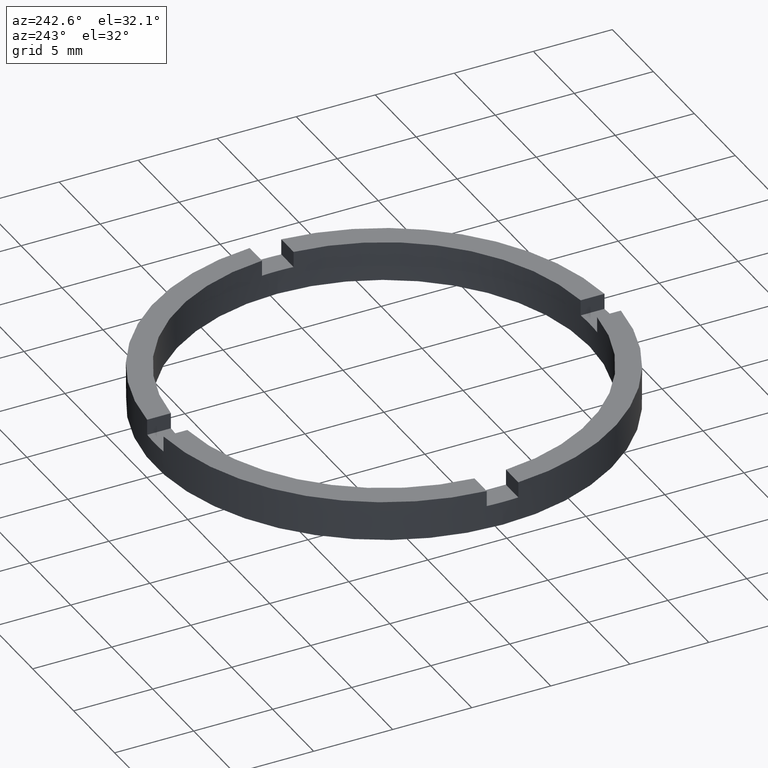
[diagram: clean part render]
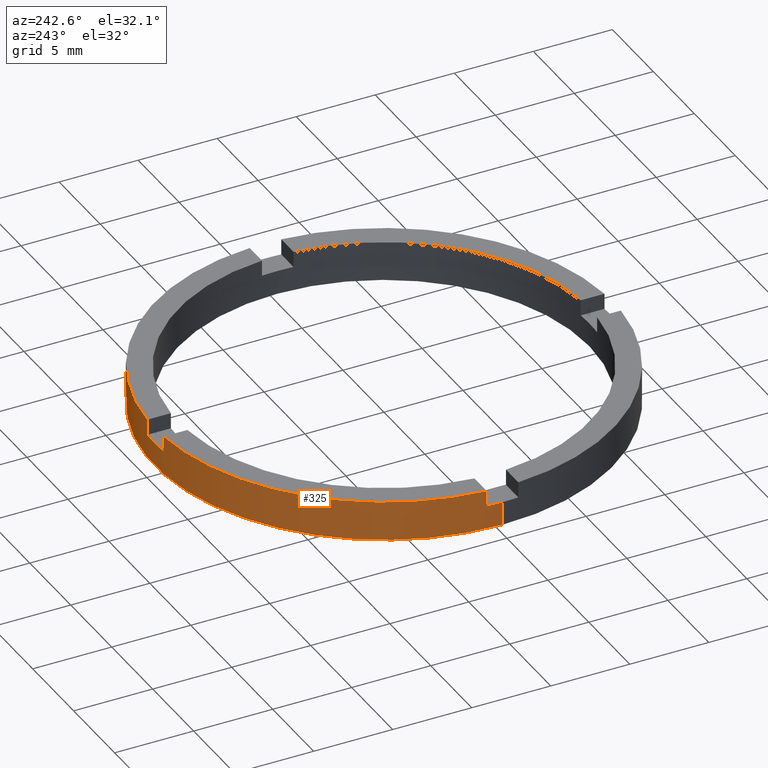
[diagram: same view with one face highlighted and labeled with its STEP entity id]
A machine part, auxiliary view. The second image highlights one B-rep face of the part: STEP entity #325.
In plain terms, the highlighted cylindrical surface (partial cylindrical patch) has radius 14.5 mm, axis along (-0, -0, -1).
Its self-contained STEP definition (entity closure, byte-faithful):
#4 = EDGE_LOOP ( 'NONE', ( #522, #671, #521, #277, #666, #273, #653, #525, #433, #697, #689, #744 ) ) ;
#5 = DIRECTION ( 'NONE',  ( -0.000000000000000000, -0.000000000000000000, -1.000000000000000000 ) ) ;
#23 = CIRCLE ( 'NONE', #160, 14.50000000000000000 ) ;
#33 = CIRCLE ( 'NONE', #590, 14.50000000000000000 ) ;
#37 = EDGE_CURVE ( 'NONE', #178, #442, #151, .T. ) ;
#44 = CIRCLE ( 'NONE', #365, 14.50000000000000000 ) ;
#47 = CARTESIAN_POINT ( 'NONE',  ( -1.000000000000024869, 14.46547614148943062, 1.500000000000000000 ) ) ;
#48 = CARTESIAN_POINT ( 'NONE',  ( -1.000000000000024869, 14.46547614148943062, 2.500000000000000000 ) ) ;
#53 = DIRECTION ( 'NONE',  ( -0.000000000000000000, -0.000000000000000000, -1.000000000000000000 ) ) ;
#66 = CARTESIAN_POINT ( 'NONE',  ( 14.50000000000000000, 1.775737858763662015E-15, 0.000000000000000000 ) ) ;
#74 = DIRECTION ( 'NONE',  ( 1.000000000000000000, 0.000000000000000000, 0.000000000000000000 ) ) ;
#75 = CARTESIAN_POINT ( 'NONE',  ( -1.000000000000024869, 14.46547614148943062, 2.500000000000000000 ) ) ;
#76 = CARTESIAN_POINT ( 'NONE',  ( 0.9999999999999751310, 14.46547614148943417, 2.500000000000000000 ) ) ;
#89 = EDGE_CURVE ( 'NONE', #209, #755, #145, .T. ) ;
#92 = CARTESIAN_POINT ( 'NONE',  ( 0.000000000000000000, 0.000000000000000000, 2.500000000000000000 ) ) ;
#97 = DIRECTION ( 'NONE',  ( 0.000000000000000000, 0.000000000000000000, 1.000000000000000000 ) ) ;
#101 = EDGE_CURVE ( 'NONE', #487, #523, #383, .T. ) ;
#104 = CARTESIAN_POINT ( 'NONE',  ( 14.50000000000000000, 1.775737858763662015E-15, 2.500000000000000000 ) ) ;
#117 = CIRCLE ( 'NONE', #351, 14.50000000000000000 ) ;
#124 = VECTOR ( 'NONE', #661, 1000.000000000000000 ) ;
#131 = AXIS2_PLACEMENT_3D ( 'NONE', #92, #685, #458 ) ;
#140 = VECTOR ( 'NONE', #573, 1000.000000000000000 ) ;
#145 = LINE ( 'NONE', #75, #140 ) ;
#148 = DIRECTION ( 'NONE',  ( 0.000000000000000000, 0.000000000000000000, 1.000000000000000000 ) ) ;
#151 = LINE ( 'NONE', #195, #124 ) ;
#159 = CARTESIAN_POINT ( 'NONE',  ( 14.50000000000000000, 1.775737858763662015E-15, 1.500000000000000000 ) ) ;
#160 = AXIS2_PLACEMENT_3D ( 'NONE', #576, #517, #74 ) ;
#161 = CARTESIAN_POINT ( 'NONE',  ( 0.9999999999999751310, 14.46547614148943417, 1.500000000000000000 ) ) ;
#165 = CARTESIAN_POINT ( 'NONE',  ( -14.46547614148943417, 0.9999999999999772404, 2.500000000000000000 ) ) ;
#174 = DIRECTION ( 'NONE',  ( -0.000000000000000000, -0.000000000000000000, -1.000000000000000000 ) ) ;
#178 = VERTEX_POINT ( 'NONE', #363 ) ;
#181 = FACE_OUTER_BOUND ( 'NONE', #4, .T. ) ;
#182 = DIRECTION ( 'NONE',  ( -1.000000000000000000, 0.000000000000000000, 0.000000000000000000 ) ) ;
#195 = CARTESIAN_POINT ( 'NONE',  ( -14.46547614148943417, 0.9999999999999772404, 2.500000000000000000 ) ) ;
#209 = VERTEX_POINT ( 'NONE', #48 ) ;
#218 = CARTESIAN_POINT ( 'NONE',  ( 14.46547614148944483, 0.9999999999998406830, 1.500000000000000000 ) ) ;
#224 = DIRECTION ( 'NONE',  ( -0.000000000000000000, -0.000000000000000000, -1.000000000000000000 ) ) ;
#232 = DIRECTION ( 'NONE',  ( 0.000000000000000000, 0.000000000000000000, 1.000000000000000000 ) ) ;
#244 = VERTEX_POINT ( 'NONE', #428 ) ;
#257 = VERTEX_POINT ( 'NONE', #66 ) ;
#273 = ORIENTED_EDGE ( 'NONE', *, *, #37, .T. ) ;
#275 = DIRECTION ( 'NONE',  ( 1.000000000000000000, 0.000000000000000000, 0.000000000000000000 ) ) ;
#277 = ORIENTED_EDGE ( 'NONE', *, *, #626, .F. ) ;
#286 = EDGE_CURVE ( 'NONE', #734, #736, #117, .T. ) ;
#287 = CIRCLE ( 'NONE', #131, 14.50000000000000000 ) ;
#291 = CIRCLE ( 'NONE', #452, 14.50000000000000000 ) ;
#298 = CARTESIAN_POINT ( 'NONE',  ( 0.000000000000000000, 0.000000000000000000, 1.500000000000000000 ) ) ;
#304 = LINE ( 'NONE', #775, #552 ) ;
#306 = EDGE_CURVE ( 'NONE', #734, #257, #638, .T. ) ;
#323 = CARTESIAN_POINT ( 'NONE',  ( -14.50000000000000000, 0.000000000000000000, 1.500000000000000000 ) ) ;
#325 = ADVANCED_FACE ( 'NONE', ( #181 ), #694, .T. ) ;
#351 = AXIS2_PLACEMENT_3D ( 'NONE', #469, #97, #393 ) ;
#363 = CARTESIAN_POINT ( 'NONE',  ( -14.46547614148943417, 0.9999999999999772404, 1.500000000000000000 ) ) ;
#365 = AXIS2_PLACEMENT_3D ( 'NONE', #298, #524, #583 ) ;
#383 = LINE ( 'NONE', #758, #404 ) ;
#393 = DIRECTION ( 'NONE',  ( 1.000000000000000000, 0.000000000000000000, 0.000000000000000000 ) ) ;
#401 = CARTESIAN_POINT ( 'NONE',  ( 0.000000000000000000, 0.000000000000000000, 0.000000000000000000 ) ) ;
#404 = VECTOR ( 'NONE', #546, 1000.000000000000000 ) ;
#428 = CARTESIAN_POINT ( 'NONE',  ( 14.46547614148944483, 0.9999999999998406830, 2.500000000000000000 ) ) ;
#433 = ORIENTED_EDGE ( 'NONE', *, *, #733, .F. ) ;
#442 = VERTEX_POINT ( 'NONE', #165 ) ;
#452 = AXIS2_PLACEMENT_3D ( 'NONE', #474, #232, #582 ) ;
#458 = DIRECTION ( 'NONE',  ( 1.000000000000000000, 0.000000000000000000, 0.000000000000000000 ) ) ;
#469 = CARTESIAN_POINT ( 'NONE',  ( 0.000000000000000000, 0.000000000000000000, 1.500000000000000000 ) ) ;
#474 = CARTESIAN_POINT ( 'NONE',  ( 0.000000000000000000, 0.000000000000000000, 2.500000000000000000 ) ) ;
#487 = VERTEX_POINT ( 'NONE', #161 ) ;
#517 = DIRECTION ( 'NONE',  ( 0.000000000000000000, -0.000000000000000000, 1.000000000000000000 ) ) ;
#521 = ORIENTED_EDGE ( 'NONE', *, *, #768, .T. ) ;
#522 = ORIENTED_EDGE ( 'NONE', *, *, #286, .F. ) ;
#523 = VERTEX_POINT ( 'NONE', #76 ) ;
#524 = DIRECTION ( 'NONE',  ( 0.000000000000000000, 0.000000000000000000, 1.000000000000000000 ) ) ;
#525 = ORIENTED_EDGE ( 'NONE', *, *, #89, .T. ) ;
#537 = LINE ( 'NONE', #608, #543 ) ;
#541 = AXIS2_PLACEMENT_3D ( 'NONE', #716, #5, #182 ) ;
#543 = VECTOR ( 'NONE', #224, 1000.000000000000000 ) ;
#546 = DIRECTION ( 'NONE',  ( 0.000000000000000000, 0.000000000000000000, 1.000000000000000000 ) ) ;
#552 = VECTOR ( 'NONE', #53, 1000.000000000000000 ) ;
#569 = EDGE_CURVE ( 'NONE', #244, #736, #537, .T. ) ;
#573 = DIRECTION ( 'NONE',  ( -0.000000000000000000, -0.000000000000000000, -1.000000000000000000 ) ) ;
#576 = CARTESIAN_POINT ( 'NONE',  ( 0.000000000000000000, 0.000000000000000000, 1.500000000000000000 ) ) ;
#582 = DIRECTION ( 'NONE',  ( 1.000000000000000000, 0.000000000000000000, 0.000000000000000000 ) ) ;
#583 = DIRECTION ( 'NONE',  ( 1.000000000000000000, 0.000000000000000000, 0.000000000000000000 ) ) ;
#590 = AXIS2_PLACEMENT_3D ( 'NONE', #401, #148, #275 ) ;
#608 = CARTESIAN_POINT ( 'NONE',  ( 14.46547614148944483, 0.9999999999998406830, 2.500000000000000000 ) ) ;
#614 = EDGE_CURVE ( 'NONE', #178, #781, #44, .T. ) ;
#618 = CARTESIAN_POINT ( 'NONE',  ( -14.50000000000000000, 0.000000000000000000, 0.000000000000000000 ) ) ;
#626 = EDGE_CURVE ( 'NONE', #781, #739, #304, .T. ) ;
#634 = VECTOR ( 'NONE', #174, 1000.000000000000000 ) ;
#638 = LINE ( 'NONE', #104, #634 ) ;
#653 = ORIENTED_EDGE ( 'NONE', *, *, #658, .F. ) ;
#658 = EDGE_CURVE ( 'NONE', #209, #442, #291, .T. ) ;
#661 = DIRECTION ( 'NONE',  ( 0.000000000000000000, 0.000000000000000000, 1.000000000000000000 ) ) ;
#666 = ORIENTED_EDGE ( 'NONE', *, *, #614, .F. ) ;
#671 = ORIENTED_EDGE ( 'NONE', *, *, #306, .T. ) ;
#685 = DIRECTION ( 'NONE',  ( 0.000000000000000000, 0.000000000000000000, 1.000000000000000000 ) ) ;
#689 = ORIENTED_EDGE ( 'NONE', *, *, #693, .F. ) ;
#693 = EDGE_CURVE ( 'NONE', #244, #523, #287, .T. ) ;
#694 = CYLINDRICAL_SURFACE ( 'NONE', #541, 14.50000000000000000 ) ;
#697 = ORIENTED_EDGE ( 'NONE', *, *, #101, .T. ) ;
#716 = CARTESIAN_POINT ( 'NONE',  ( 0.000000000000000000, 0.000000000000000000, 2.500000000000000000 ) ) ;
#733 = EDGE_CURVE ( 'NONE', #487, #755, #23, .T. ) ;
#734 = VERTEX_POINT ( 'NONE', #159 ) ;
#736 = VERTEX_POINT ( 'NONE', #218 ) ;
#739 = VERTEX_POINT ( 'NONE', #618 ) ;
#744 = ORIENTED_EDGE ( 'NONE', *, *, #569, .T. ) ;
#755 = VERTEX_POINT ( 'NONE', #47 ) ;
#758 = CARTESIAN_POINT ( 'NONE',  ( 0.9999999999999751310, 14.46547614148943417, 2.500000000000000000 ) ) ;
#768 = EDGE_CURVE ( 'NONE', #257, #739, #33, .T. ) ;
#775 = CARTESIAN_POINT ( 'NONE',  ( -14.50000000000000000, 0.000000000000000000, 2.500000000000000000 ) ) ;
#781 = VERTEX_POINT ( 'NONE', #323 ) ;